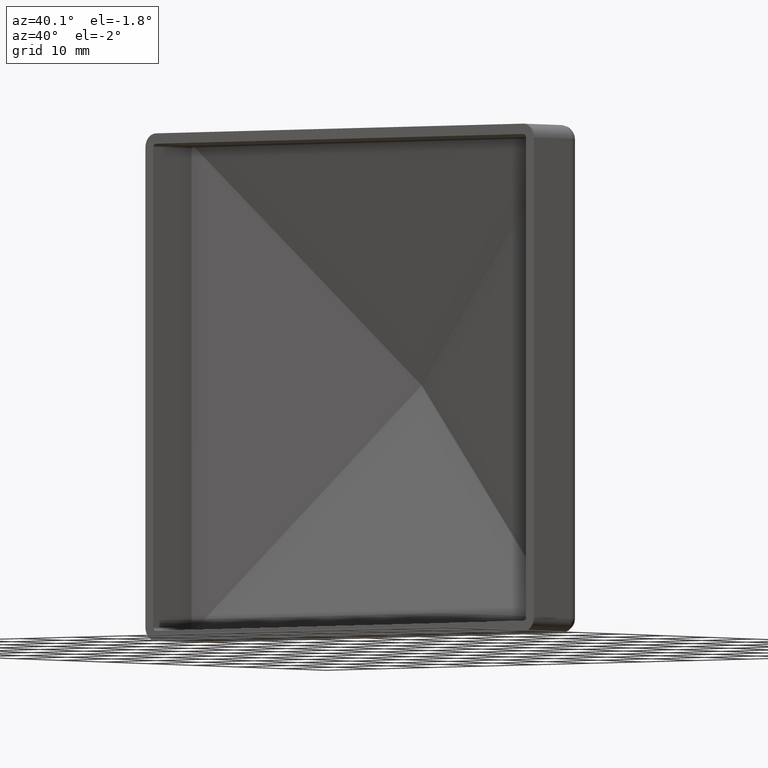
[diagram: clean part render]
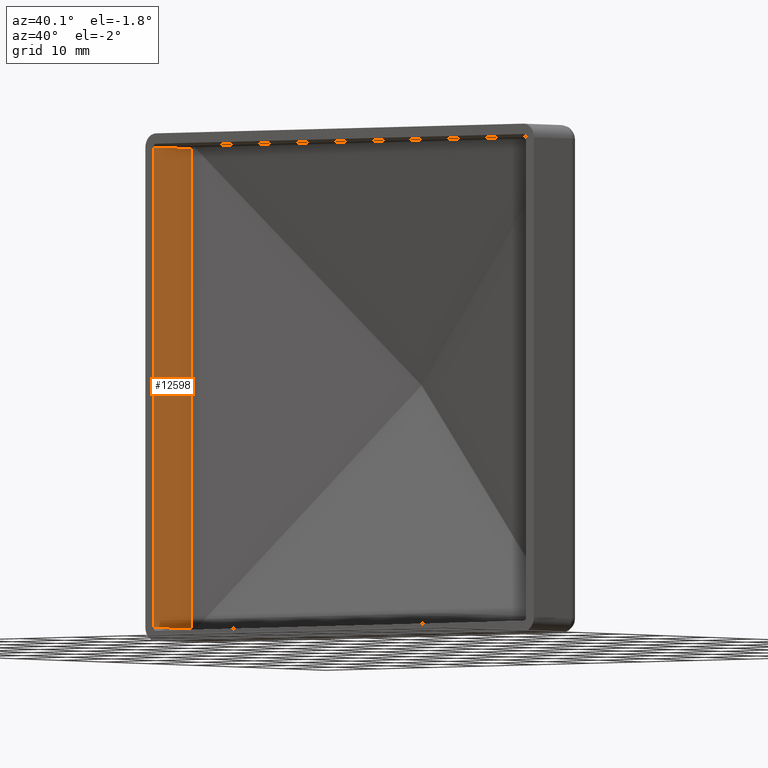
[diagram: same view with one face highlighted and labeled with its STEP entity id]
A machine part, auxiliary view. The second image highlights one B-rep face of the part: STEP entity #12598.
In plain terms, the highlighted planar face has unit normal (1, 0, -0).
Its self-contained STEP definition (entity closure, byte-faithful):
#59 = ORIENTED_EDGE ( 'NONE', *, *, #10280, .T. ) ;
#275 = DIRECTION ( 'NONE',  ( 1.888134395621014649E-16, -0.000000000000000000, 1.000000000000000000 ) ) ;
#321 = VERTEX_POINT ( 'NONE', #11881 ) ;
#398 = EDGE_CURVE ( 'NONE', #465, #4601, #648, .T. ) ;
#465 = VERTEX_POINT ( 'NONE', #8300 ) ;
#648 = LINE ( 'NONE', #11435, #8474 ) ;
#1282 = VERTEX_POINT ( 'NONE', #9798 ) ;
#1392 = AXIS2_PLACEMENT_3D ( 'NONE', #4520, #11692, #7597 ) ;
#1972 = LINE ( 'NONE', #9022, #2606 ) ;
#2074 = ORIENTED_EDGE ( 'NONE', *, *, #9964, .T. ) ;
#2606 = VECTOR ( 'NONE', #11143, 1000.000000000000000 ) ;
#3048 = FACE_OUTER_BOUND ( 'NONE', #9774, .T. ) ;
#3684 = ORIENTED_EDGE ( 'NONE', *, *, #398, .F. ) ;
#4520 = CARTESIAN_POINT ( 'NONE',  ( -35.25000000000000000, 25.00000000000000000, -36.75000000000000711 ) ) ;
#4601 = VERTEX_POINT ( 'NONE', #7203 ) ;
#4667 = DIRECTION ( 'NONE',  ( -0.000000000000000000, 1.000000000000000000, -0.000000000000000000 ) ) ;
#5321 = LINE ( 'NONE', #8785, #11210 ) ;
#5962 = VECTOR ( 'NONE', #8055, 1000.000000000000000 ) ;
#6567 = ORIENTED_EDGE ( 'NONE', *, *, #9927, .T. ) ;
#6750 = LINE ( 'NONE', #9167, #5962 ) ;
#7203 = CARTESIAN_POINT ( 'NONE',  ( -35.24999999999999289, 0.000000000000000000, 34.74999999999998579 ) ) ;
#7467 = PLANE ( 'NONE',  #1392 ) ;
#7597 = DIRECTION ( 'NONE',  ( -1.888134395621014649E-16, 0.000000000000000000, -1.000000000000000000 ) ) ;
#8055 = DIRECTION ( 'NONE',  ( 0.000000000000000000, -1.000000000000000000, 0.000000000000000000 ) ) ;
#8300 = CARTESIAN_POINT ( 'NONE',  ( -35.25000000000000000, 0.000000000000000000, -34.75000000000000000 ) ) ;
#8474 = VECTOR ( 'NONE', #275, 1000.000000000000000 ) ;
#8785 = CARTESIAN_POINT ( 'NONE',  ( -35.25000000000000000, 8.471642575352495541, -34.75000000000000000 ) ) ;
#9022 = CARTESIAN_POINT ( 'NONE',  ( -35.24999999999999289, 8.471642575352495541, -36.75000000000000711 ) ) ;
#9167 = CARTESIAN_POINT ( 'NONE',  ( -35.24999999999999289, 0.000000000000000000, 34.74999999999998579 ) ) ;
#9774 = EDGE_LOOP ( 'NONE', ( #3684, #59, #2074, #6567 ) ) ;
#9798 = CARTESIAN_POINT ( 'NONE',  ( -35.24999999999999289, 8.471642575352495541, -34.75000000000000000 ) ) ;
#9927 = EDGE_CURVE ( 'NONE', #321, #4601, #6750, .T. ) ;
#9964 = EDGE_CURVE ( 'NONE', #1282, #321, #1972, .T. ) ;
#10280 = EDGE_CURVE ( 'NONE', #465, #1282, #5321, .T. ) ;
#11143 = DIRECTION ( 'NONE',  ( -0.000000000000000000, -0.000000000000000000, 1.000000000000000000 ) ) ;
#11210 = VECTOR ( 'NONE', #4667, 1000.000000000000000 ) ;
#11435 = CARTESIAN_POINT ( 'NONE',  ( -35.25000000000000000, 0.000000000000000000, -36.75000000000000711 ) ) ;
#11692 = DIRECTION ( 'NONE',  ( 1.000000000000000000, 0.000000000000000000, -1.888134395621014649E-16 ) ) ;
#11881 = CARTESIAN_POINT ( 'NONE',  ( -35.24999999999999289, 8.471642575352495541, 34.74999999999996447 ) ) ;
#12598 = ADVANCED_FACE ( 'NONE', ( #3048 ), #7467, .T. ) ;